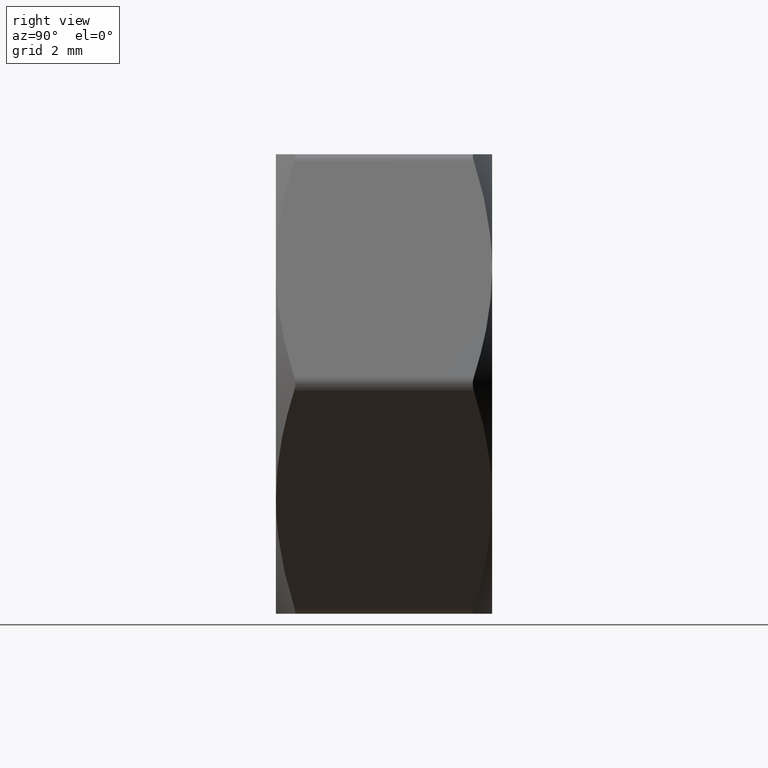
[diagram: clean part render]
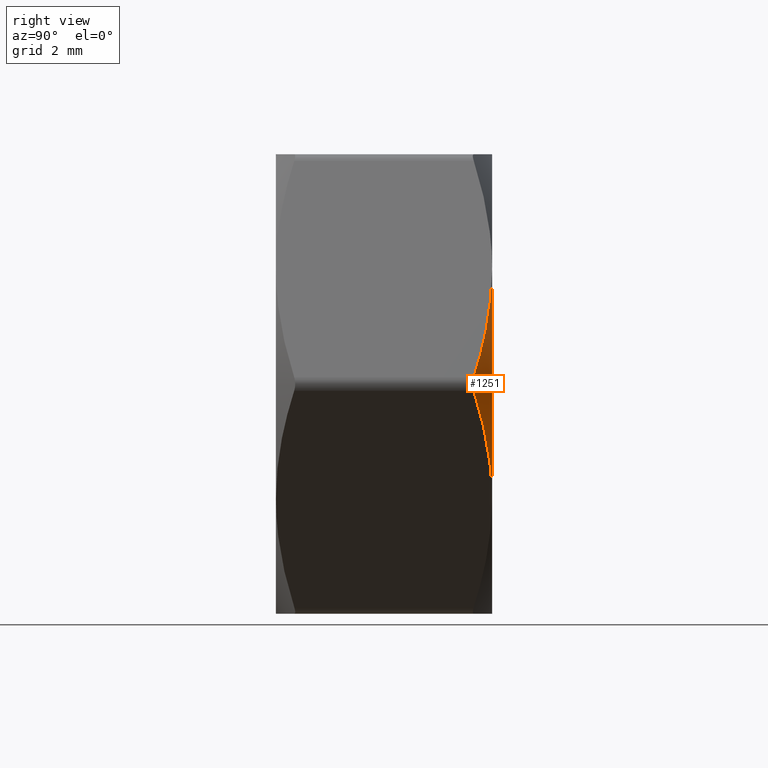
[diagram: same view with one face highlighted and labeled with its STEP entity id]
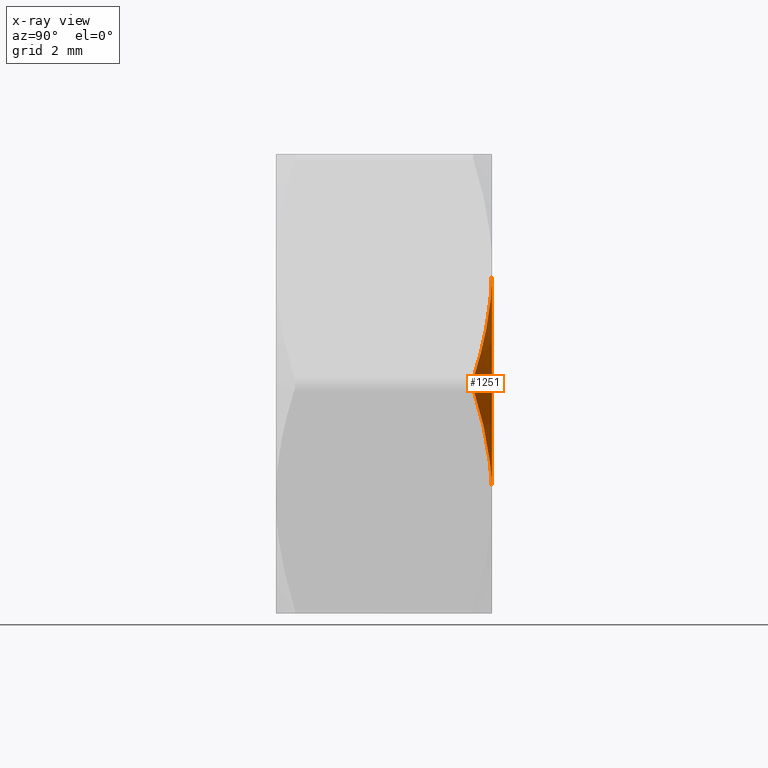
[diagram: x-ray of the same camera — body ghosted, the highlighted face saturated]
A machine part, right view. The second image highlights one B-rep face of the part: STEP entity #1251.
The next image is the same camera in x-ray: the body ghosted, the highlighted face saturated — about 0% of this face is hidden behind the body in this view.
In plain terms, the highlighted conical surface has half-angle 60 deg.
Its self-contained STEP definition (entity closure, byte-faithful):
#161 = FACE_OUTER_BOUND ( 'NONE', #15034, .T. ) ;
#309 = CARTESIAN_POINT ( 'NONE',  ( 9.737682909658110100, 3.285425769142569200, -0.08763185436934718700 ) ) ;
#750 = CARTESIAN_POINT ( 'NONE',  ( 9.292573759524595200, 3.530699347556998500, 0.9047901154220690000 ) ) ;
#775 = ORIENTED_EDGE ( 'NONE', *, *, #12186, .T. ) ;
#1116 = CIRCLE ( 'NONE', #3841, 8.499999999999998200 ) ;
#1117 = CARTESIAN_POINT ( 'NONE',  ( 7.753624804237800200, 3.984157063911049500, -3.570327896233836700 ) ) ;
#1251 = ADVANCED_FACE ( 'NONE', ( #161 ), #3070, .T. ) ;
#1438 = DIRECTION ( 'NONE',  ( -0.0000000000000000000, -1.000000000000000000, -0.0000000000000000000 ) ) ;
#2062 = VERTEX_POINT ( 'NONE', #11674 ) ;
#2377 = CARTESIAN_POINT ( 'NONE',  ( 7.556958195047243100, 4.000000000000007100, -3.910964455504173800 ) ) ;
#2422 = ORIENTED_EDGE ( 'NONE', *, *, #7509, .F. ) ;
#2747 = CARTESIAN_POINT ( 'NONE',  ( 9.670617008926230400, 3.322278594739816300, -0.2500000000000025000 ) ) ;
#2831 = DIRECTION ( 'NONE',  ( 9.384470073648532200E-018, -1.000000000000000000, -0.0000000000000000000 ) ) ;
#3070 = CONICAL_SURFACE ( 'NONE', #8092, 8.500000000000000000, 1.047197551196603800 ) ;
#3508 = CARTESIAN_POINT ( 'NONE',  ( 7.361215932167730200, 4.000000000000000000, 4.249999999999999100 ) ) ;
#3841 = AXIS2_PLACEMENT_3D ( 'NONE', #8886, #1438, #13670 ) ;
#3867 = CARTESIAN_POINT ( 'NONE',  ( 9.293475548978769000, 3.530202177888618100, -0.9032281702697123600 ) ) ;
#4776 = ORIENTED_EDGE ( 'NONE', *, *, #12182, .F. ) ;
#5181 = CARTESIAN_POINT ( 'NONE',  ( 8.913226115775762200, 3.700599545140474500, -1.561839508126582800 ) ) ;
#5194 = VERTEX_POINT ( 'NONE', #15193 ) ;
#6451 = DIRECTION ( 'NONE',  ( 1.000000000000000000, 0.0000000000000000000, 0.0000000000000000000 ) ) ;
#7196 = CARTESIAN_POINT ( 'NONE',  ( 8.911804254728645300, 3.701163182834506800, 1.564302243701488400 ) ) ;
#7509 = EDGE_CURVE ( 'NONE', #5194, #2062, #13369, .T. ) ;
#7594 = CARTESIAN_POINT ( 'NONE',  ( 9.713575952496436000, 3.298594703086405600, -0.1755929270969193700 ) ) ;
#7748 = CARTESIAN_POINT ( 'NONE',  ( 9.670617008926848600, 3.322278594739475700, 0.2499999999989287200 ) ) ;
#8092 = AXIS2_PLACEMENT_3D ( 'NONE', #13816, #2831, #6451 ) ;
#8886 = CARTESIAN_POINT ( 'NONE',  ( -3.753788029459412900E-017, 4.000000000000000000, 1.381622212421876000E-016 ) ) ;
#9578 = EDGE_CURVE ( 'NONE', #5194, #13923, #9701, .T. ) ;
#9701 = B_SPLINE_CURVE_WITH_KNOTS ( 'NONE', 3,
 ( #7748, #15124, #12620, #309, #7594, #13744 ),
 .UNSPECIFIED., .F., .F.,
 ( 4, 2, 4 ),
 ( 1.197603556906642600E-015, 0.0002637416435134468600, 0.0005274832870256961000 ),
 .UNSPECIFIED. ) ;
#10649 = ORIENTED_EDGE ( 'NONE', *, *, #9578, .T. ) ;
#10932 = CARTESIAN_POINT ( 'NONE',  ( 8.142893031566083900, 3.922654203673382200, -2.896095548728976800 ) ) ;
#11096 = CARTESIAN_POINT ( 'NONE',  ( 7.361215932167727500, 4.000000000000000000, -4.250000000000002700 ) ) ;
#11250 = CARTESIAN_POINT ( 'NONE',  ( 8.336297064518998200, 3.877050562629693600, -2.561109937265800600 ) ) ;
#11674 = CARTESIAN_POINT ( 'NONE',  ( 7.361215932167730200, 4.000000000000000000, 4.249999999999999100 ) ) ;
#12153 = VERTEX_POINT ( 'NONE', #15870 ) ;
#12182 = EDGE_CURVE ( 'NONE', #12153, #13923, #12411, .T. ) ;
#12186 = EDGE_CURVE ( 'NONE', #12153, #2062, #1116, .T. ) ;
#12411 = B_SPLINE_CURVE_WITH_KNOTS ( 'NONE', 3,
 ( #11096, #2377, #1117, #10932, #11250, #5181, #3867, #2747 ),
 .UNSPECIFIED., .F., .F.,
 ( 4, 2, 2, 4 ),
 ( 0.004965801523355313700, 0.006128321858666295100, 0.007290842193977274900, 0.009615882864599231700 ),
 .UNSPECIFIED. ) ;
#12620 = CARTESIAN_POINT ( 'NONE',  ( 9.737525304183556300, 3.285512090430725800, 0.08852653450624722900 ) ) ;
#13004 = CARTESIAN_POINT ( 'NONE',  ( 9.670617008926848600, 3.322278594739475700, 0.2499999999989287200 ) ) ;
#13369 = B_SPLINE_CURVE_WITH_KNOTS ( 'NONE', 3,
 ( #13004, #750, #7196, #14490, #15720, #3508 ),
 .UNSPECIFIED., .F., .F.,
 ( 4, 2, 4 ),
 ( 0.0002975640376514566000, 0.002631682780503384400, 0.004965801523355312800 ),
 .UNSPECIFIED. ) ;
#13513 = CARTESIAN_POINT ( 'NONE',  ( 9.670617008926230400, 3.322278594739816300, -0.2500000000000025000 ) ) ;
#13670 = DIRECTION ( 'NONE',  ( 1.776356839400250500E-015, 0.0000000000000000000, 1.000000000000000000 ) ) ;
#13744 = CARTESIAN_POINT ( 'NONE',  ( 9.670617008926230400, 3.322278594739816300, -0.2500000000000025000 ) ) ;
#13816 = CARTESIAN_POINT ( 'NONE',  ( -3.753788029459412900E-017, 4.000000000000000000, 0.0000000000000000000 ) ) ;
#13923 = VERTEX_POINT ( 'NONE', #13513 ) ;
#14490 = CARTESIAN_POINT ( 'NONE',  ( 8.142655729170901000, 3.936145617773008500, 2.896506568534185500 ) ) ;
#15034 = EDGE_LOOP ( 'NONE', ( #2422, #10649, #4776, #775 ) ) ;
#15124 = CARTESIAN_POINT ( 'NONE',  ( 9.713560539827369700, 3.298603200315139500, 0.1756196226228233000 ) ) ;
#15193 = CARTESIAN_POINT ( 'NONE',  ( 9.670617008926848600, 3.322278594739475700, 0.2499999999989287200 ) ) ;
#15720 = CARTESIAN_POINT ( 'NONE',  ( 7.754229000995562300, 4.000000000000004400, 3.569281396751622800 ) ) ;
#15870 = CARTESIAN_POINT ( 'NONE',  ( 7.361215932167727500, 4.000000000000000000, -4.250000000000002700 ) ) ;